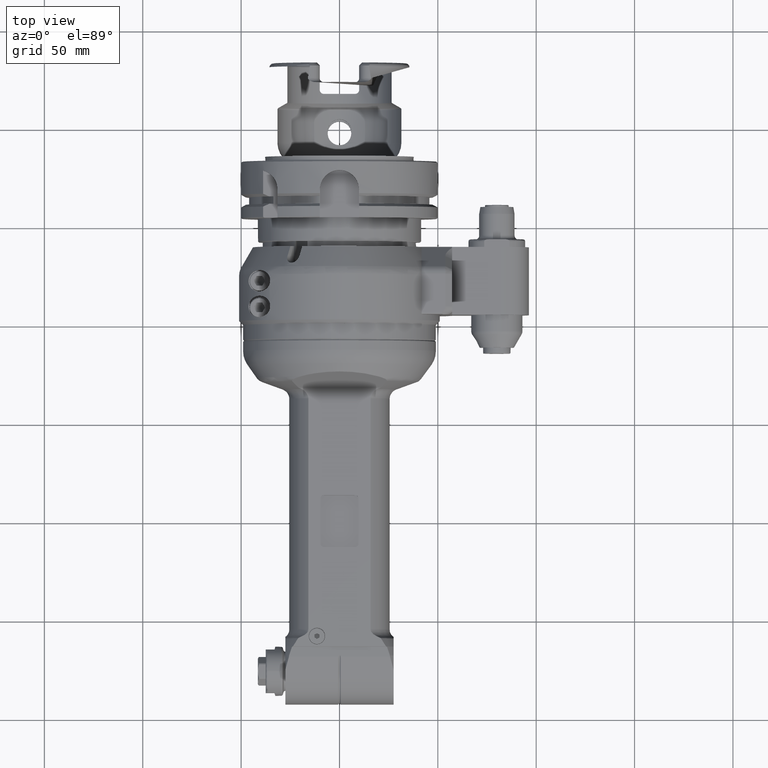
[diagram: clean part render]
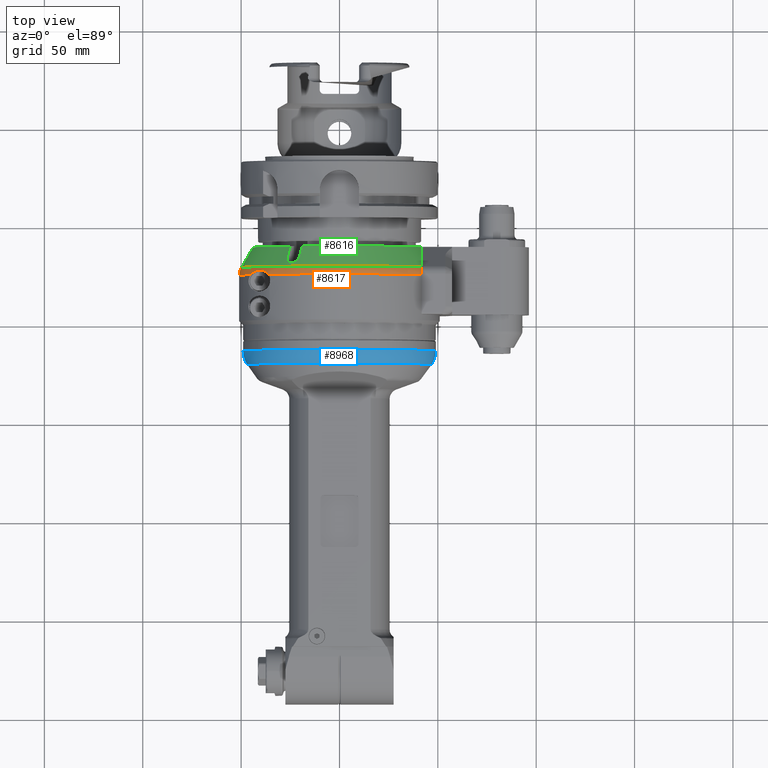
[diagram: same view with three faces highlighted in distinct colors, each labeled with its STEP entity id]
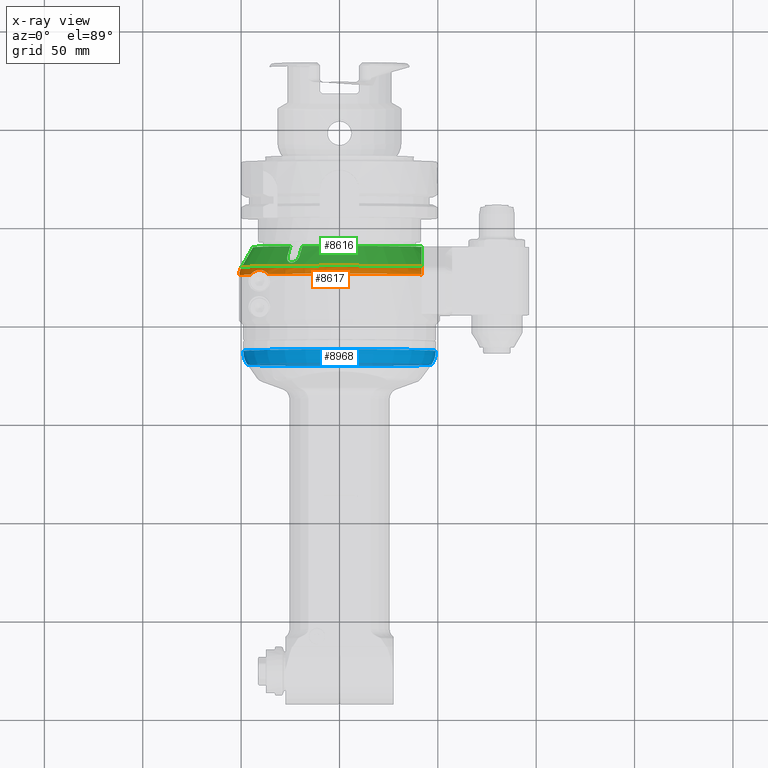
[diagram: x-ray of the same camera — body ghosted, the three highlighted faces saturated]
A machine part, top view with three faces highlighted in distinct colors.
The next image is the same camera in x-ray (body ghosted, the three faces saturated) — at least one of them is partly hidden behind the body in this view.
Their STEP definitions:

[orange] entity #8617 — the highlighted toroidal blend (fillet) surface has major radius 43 mm and minor (blend) radius 8 mm.
#84=TOROIDAL_SURFACE('',#9306,43.,8.);
#702=FACE_OUTER_BOUND('',#1241,.T.);
#1241=EDGE_LOOP('',(#5958,#5959,#5960,#5961,#5962,#5963));
#1823=CIRCLE('',#9260,51.);
#1824=CIRCLE('',#9261,51.);
#1845=CIRCLE('',#9303,49.92820323028);
#2256=B_SPLINE_CURVE_WITH_KNOTS('',3,(#12913,#12914,#12915,#12916,#12917,
#12918,#12919,#12920,#12921,#12922),.UNSPECIFIED.,.F.,.F.,(4,2,2,2,4),(-9.68559804021147,
-9.63577634006454,-9.4843525606202,-9.37005770955715,-9.2557628584941),
 .UNSPECIFIED.);
#2271=B_SPLINE_CURVE_WITH_KNOTS('',3,(#13232,#13233,#13234,#13235,#13236,
#13237,#13238,#13239),.UNSPECIFIED.,.F.,.F.,(4,2,2,4),(4.34441023881693,
4.44441523838835,4.59248867498487,4.74056211158139),.UNSPECIFIED.);
#2274=B_SPLINE_CURVE_WITH_KNOTS('',3,(#13271,#13272,#13273,#13274,#13275,
#13276,#13277,#13278,#13279,#13280,#13281,#13282,#13283,#13284,#13285,#13286),
 .UNSPECIFIED.,.F.,.F.,(4,3,3,3,3,4),(-9.34472443709596,-9.15576581563747,
-8.53592281537668,-8.19749167718073,-7.91960616501336,-7.85473194545352),
 .UNSPECIFIED.);
#3604=VERTEX_POINT('',#12878);
#3614=VERTEX_POINT('',#12909);
#3619=VERTEX_POINT('',#12933);
#3621=VERTEX_POINT('',#12942);
#3622=VERTEX_POINT('',#12969);
#3662=VERTEX_POINT('',#13220);
#4485=EDGE_CURVE('',#3614,#3604,#2256,.T.);
#4491=EDGE_CURVE('',#3619,#3604,#1823,.T.);
#4494=EDGE_CURVE('',#3622,#3621,#1824,.T.);
#4557=EDGE_CURVE('',#3662,#3622,#2271,.T.);
#4560=EDGE_CURVE('',#3614,#3662,#1845,.T.);
#4565=EDGE_CURVE('',#3621,#3619,#2274,.T.);
#5958=ORIENTED_EDGE('',*,*,#4560,.T.);
#5959=ORIENTED_EDGE('',*,*,#4557,.T.);
#5960=ORIENTED_EDGE('',*,*,#4494,.T.);
#5961=ORIENTED_EDGE('',*,*,#4565,.T.);
#5962=ORIENTED_EDGE('',*,*,#4491,.T.);
#5963=ORIENTED_EDGE('',*,*,#4485,.F.);
#8617=ADVANCED_FACE('',(#702),#84,.T.);
#9260=AXIS2_PLACEMENT_3D('',#12934,#10288,#10289);
#9261=AXIS2_PLACEMENT_3D('',#12970,#10290,#10291);
#9303=AXIS2_PLACEMENT_3D('',#13245,#10404,#10405);
#9306=AXIS2_PLACEMENT_3D('',#13270,#10410,#10411);
#10288=DIRECTION('center_axis',(-1.,0.,0.));
#10289=DIRECTION('ref_axis',(0.,-0.711205879844998,0.702983781088798));
#10290=DIRECTION('center_axis',(-1.,0.,0.));
#10291=DIRECTION('ref_axis',(0.,-0.999567380468613,0.0294117647058804));
#10404=DIRECTION('center_axis',(1.,0.,0.));
#10405=DIRECTION('ref_axis',(0.,0.836200730225418,0.548423503116412));
#10410=DIRECTION('center_axis',(1.,0.,0.));
#10411=DIRECTION('ref_axis',(0.,-1.,0.));
#12878=CARTESIAN_POINT('',(-37.23205080757,41.75,29.29057015492));
#12909=CARTESIAN_POINT('',(-41.23205080757,41.75,27.38180011986));
#12913=CARTESIAN_POINT('Ctrl Pts',(-41.2320508075675,41.75,27.3818001198576));
#12914=CARTESIAN_POINT('Ctrl Pts',(-41.1084978721799,41.75,27.5118698927609));
#12915=CARTESIAN_POINT('Ctrl Pts',(-40.9796012581369,41.75,27.63883358715));
#12916=CARTESIAN_POINT('Ctrl Pts',(-40.4412749376929,41.75,28.1311886381695));
#12917=CARTESIAN_POINT('Ctrl Pts',(-39.9932266664163,41.75,28.4521983127449));
#12918=CARTESIAN_POINT('Ctrl Pts',(-39.2119237728328,41.75,28.8694287521605));
#12919=CARTESIAN_POINT('Ctrl Pts',(-38.8258618631201,41.75,29.0288082766981));
#12920=CARTESIAN_POINT('Ctrl Pts',(-38.0264941442551,41.75,29.2396724058848));
#12921=CARTESIAN_POINT('Ctrl Pts',(-37.6130336444468,41.75,29.290570154915));
#12922=CARTESIAN_POINT('Ctrl Pts',(-37.23205080757,41.75,29.290570154915));
#12933=CARTESIAN_POINT('',(-37.23205080757,-36.27149987209,35.85217283553));
#12934=CARTESIAN_POINT('Origin',(-37.23205080757,0.,0.));
#12942=CARTESIAN_POINT('',(-37.23205080757,-45.1718026933,23.67505525733));
#12969=CARTESIAN_POINT('',(-37.2320508231036,-50.9779364044793,1.499999980309));
#12970=CARTESIAN_POINT('Origin',(-37.23205080757,0.,0.));
#13220=CARTESIAN_POINT('',(-41.2320587089715,-49.9056612221311,1.50000006858959));
#13232=CARTESIAN_POINT('Ctrl Pts',(-41.2320587100669,-49.9056612240274,
1.5));
#13233=CARTESIAN_POINT('Ctrl Pts',(-40.9199628642827,-50.0859316928166,
1.5));
#13234=CARTESIAN_POINT('Ctrl Pts',(-40.6009646113261,-50.2413262775005,
1.5));
#13235=CARTESIAN_POINT('Ctrl Pts',(-39.8370100654999,-50.5578441661684,
1.5));
#13236=CARTESIAN_POINT('Ctrl Pts',(-39.3203684112507,-50.7191785472564,
1.5));
#13237=CARTESIAN_POINT('Ctrl Pts',(-38.2646778846743,-50.9292248693063,
1.5));
#13238=CARTESIAN_POINT('Ctrl Pts',(-37.7256289314938,-50.9779364038993,
1.5));
#13239=CARTESIAN_POINT('Ctrl Pts',(-37.23205080757,-50.9779364038993,1.5));
#13245=CARTESIAN_POINT('Origin',(-41.23205080757,0.,0.));
#13270=CARTESIAN_POINT('Origin',(-37.23205080757,0.,0.));
#13271=CARTESIAN_POINT('Ctrl Pts',(-37.2320508075727,-45.1718026933004,
23.6750552573282));
#13272=CARTESIAN_POINT('Ctrl Pts',(-37.6059523067415,-44.9002459459361,
24.1931832058645));
#13273=CARTESIAN_POINT('Ctrl Pts',(-37.9420066961396,-44.583821938807,24.718802925503));
#13274=CARTESIAN_POINT('Ctrl Pts',(-38.2317635357579,-44.2347948006096,
25.2564932996317));
#13275=CARTESIAN_POINT('Ctrl Pts',(-39.1822560162215,-43.0898773216244,
27.0202848225526));
#13276=CARTESIAN_POINT('Ctrl Pts',(-39.5913735244697,-41.6682943531802,
28.8794189915673));
#13277=CARTESIAN_POINT('Ctrl Pts',(-39.4830876369283,-40.2906640836273,
30.7375607372434));
#13278=CARTESIAN_POINT('Ctrl Pts',(-39.4239640908758,-39.5384849351303,
31.7520967175706));
#13279=CARTESIAN_POINT('Ctrl Pts',(-39.2001167152273,-38.7666121290655,
32.7926546956175));
#13280=CARTESIAN_POINT('Ctrl Pts',(-38.8239051275744,-38.0796938038292,
33.6844936512119));
#13281=CARTESIAN_POINT('Ctrl Pts',(-38.5149981213353,-37.5156657665659,
34.4167818391937));
#13282=CARTESIAN_POINT('Ctrl Pts',(-38.1276341386855,-37.0238735561015,
35.0318289883221));
#13283=CARTESIAN_POINT('Ctrl Pts',(-37.6160859153108,-36.5775081079181,
35.5266834858267));
#13284=CARTESIAN_POINT('Ctrl Pts',(-37.4966615829668,-36.4733011276279,
35.6422105569248));
#13285=CARTESIAN_POINT('Ctrl Pts',(-37.368565930287,-36.3706479171666,35.751865154858));
#13286=CARTESIAN_POINT('Ctrl Pts',(-37.2320508075659,-36.2714998720946,
35.8521728355289));

[blue] entity #8968 — the highlighted toroidal blend (fillet) surface has major radius 37 mm and minor (blend) radius 12 mm.
#111=TOROIDAL_SURFACE('',#9938,37.,12.);
#1053=FACE_OUTER_BOUND('',#1633,.T.);
#1633=EDGE_LOOP('',(#7763,#7764,#7765,#7766));
#2118=CIRCLE('',#9937,46.82982453147);
#2119=CIRCLE('',#9939,49.);
#2120=CIRCLE('',#9940,12.);
#4262=VERTEX_POINT('',#57276);
#4263=VERTEX_POINT('',#57280);
#5467=EDGE_CURVE('',#4262,#4262,#2118,.T.);
#5469=EDGE_CURVE('',#4263,#4263,#2119,.T.);
#5470=EDGE_CURVE('',#4263,#4262,#2120,.T.);
#7763=ORIENTED_EDGE('',*,*,#5469,.T.);
#7764=ORIENTED_EDGE('',*,*,#5470,.T.);
#7765=ORIENTED_EDGE('',*,*,#5467,.T.);
#7766=ORIENTED_EDGE('',*,*,#5470,.F.);
#8968=ADVANCED_FACE('',(#1053),#111,.T.);
#9937=AXIS2_PLACEMENT_3D('',#57277,#12084,#12085);
#9938=AXIS2_PLACEMENT_3D('',#57279,#12087,#12088);
#9939=AXIS2_PLACEMENT_3D('',#57281,#12089,#12090);
#9940=AXIS2_PLACEMENT_3D('',#57282,#12091,#12092);
#12084=DIRECTION('center_axis',(-1.,0.,0.));
#12085=DIRECTION('ref_axis',(0.,1.,0.));
#12087=DIRECTION('center_axis',(-1.,0.,0.));
#12088=DIRECTION('ref_axis',(0.,1.,0.));
#12089=DIRECTION('center_axis',(1.,0.,0.));
#12090=DIRECTION('ref_axis',(0.,-1.,0.));
#12091=DIRECTION('center_axis',(0.,1.22464679914735E-16,1.));
#12092=DIRECTION('ref_axis',(0.,-1.,1.22464679914735E-16));
#57276=CARTESIAN_POINT('',(51.09933176966,-46.82982453147,0.));
#57277=CARTESIAN_POINT('Origin',(51.09933176966,0.,0.));
#57279=CARTESIAN_POINT('Origin',(44.21641453345,0.,0.));
#57280=CARTESIAN_POINT('',(44.21641453345,-49.,6.00076931582203E-15));
#57281=CARTESIAN_POINT('Origin',(44.21641453345,0.,0.));
#57282=CARTESIAN_POINT('Origin',(44.21641453345,-37.,4.53119315684521E-15));

[green] entity #8616 — the highlighted conical surface has half-angle 30 deg.
#195=(
BOUNDED_CURVE()
B_SPLINE_CURVE(2,(#12910,#12911,#12912),.UNSPECIFIED.,.F.,.F.)
B_SPLINE_CURVE_WITH_KNOTS((3,3),(-4.92391023083954,-2.81130786844121),
 .UNSPECIFIED.)
CURVE()
GEOMETRIC_REPRESENTATION_ITEM()
RATIONAL_B_SPLINE_CURVE((1.0074989594549,1.03062027413363,1.03252076511009))
REPRESENTATION_ITEM('')
);
#579=CONICAL_SURFACE('',#9302,46.96410161514,0.523598775598299);
#701=FACE_OUTER_BOUND('',#1240,.T.);
#1240=EDGE_LOOP('',(#5950,#5951,#5952,#5953,#5954,#5955,#5956,#5957));
#1845=CIRCLE('',#9303,49.92820323028);
#1846=CIRCLE('',#9304,44.);
#1847=CIRCLE('',#9305,44.);
#2268=B_SPLINE_CURVE_WITH_KNOTS('',3,(#13177,#13178,#13179,#13180,#13181,
#13182,#13183,#13184,#13185,#13186,#13187,#13188,#13189,#13190,#13191,#13192,
#13193,#13194),.UNSPECIFIED.,.F.,.F.,(4,2,2,2,2,2,2,2,4),(1.11206982951603,
1.24885677734264,1.4029266724495,1.5444028479349,1.68587902342029,1.82735519890569,
1.96883137439109,2.12290126949794,2.25968821731982),.UNSPECIFIED.);
#2270=B_SPLINE_CURVE_WITH_KNOTS('',3,(#13221,#13222,#13223,#13224,#13225,
#13226,#13227,#13228,#13229,#13230),.UNSPECIFIED.,.F.,.F.,(4,3,3,4),(0.,
0.3333333333333,0.6666666666667,1.),.UNSPECIFIED.);
#2272=B_SPLINE_CURVE_WITH_KNOTS('',3,(#13248,#13249,#13250,#13251,#13252,
#13253,#13254,#13255,#13256,#13257),.UNSPECIFIED.,.F.,.F.,(4,3,3,4),(0.,
0.3333333333333,0.6666666666667,1.),.UNSPECIFIED.);
#2273=B_SPLINE_CURVE_WITH_KNOTS('',3,(#13259,#13260,#13261,#13262,#13263,
#13264,#13265,#13266,#13267,#13268),.UNSPECIFIED.,.F.,.F.,(4,3,3,4),(0.,
0.3333333333333,0.6666666666667,1.),.UNSPECIFIED.);
#3613=VERTEX_POINT('',#12907);
#3614=VERTEX_POINT('',#12909);
#3655=VERTEX_POINT('',#13175);
#3656=VERTEX_POINT('',#13176);
#3661=VERTEX_POINT('',#13219);
#3662=VERTEX_POINT('',#13220);
#3665=VERTEX_POINT('',#13246);
#3666=VERTEX_POINT('',#13258);
#4484=EDGE_CURVE('',#3613,#3614,#195,.T.);
#4546=EDGE_CURVE('',#3655,#3656,#2268,.F.);
#4555=EDGE_CURVE('',#3661,#3662,#2270,.T.);
#4560=EDGE_CURVE('',#3614,#3662,#1845,.T.);
#4561=EDGE_CURVE('',#3665,#3613,#1846,.T.);
#4562=EDGE_CURVE('',#3665,#3656,#2272,.T.);
#4563=EDGE_CURVE('',#3655,#3666,#2273,.T.);
#4564=EDGE_CURVE('',#3661,#3666,#1847,.T.);
#5950=ORIENTED_EDGE('',*,*,#4560,.F.);
#5951=ORIENTED_EDGE('',*,*,#4484,.F.);
#5952=ORIENTED_EDGE('',*,*,#4561,.F.);
#5953=ORIENTED_EDGE('',*,*,#4562,.T.);
#5954=ORIENTED_EDGE('',*,*,#4546,.F.);
#5955=ORIENTED_EDGE('',*,*,#4563,.T.);
#5956=ORIENTED_EDGE('',*,*,#4564,.F.);
#5957=ORIENTED_EDGE('',*,*,#4555,.T.);
#8616=ADVANCED_FACE('',(#701),#579,.T.);
#9302=AXIS2_PLACEMENT_3D('',#13244,#10402,#10403);
#9303=AXIS2_PLACEMENT_3D('',#13245,#10404,#10405);
#9304=AXIS2_PLACEMENT_3D('',#13247,#10406,#10407);
#9305=AXIS2_PLACEMENT_3D('',#13269,#10408,#10409);
#10402=DIRECTION('center_axis',(1.,0.,0.));
#10403=DIRECTION('ref_axis',(0.,-1.,0.));
#10404=DIRECTION('center_axis',(1.,0.,0.));
#10405=DIRECTION('ref_axis',(0.,0.836200730225418,0.548423503116412));
#10406=DIRECTION('center_axis',(-1.,0.,0.));
#10407=DIRECTION('ref_axis',(0.,-0.429527235513105,0.90305390423411));
#10408=DIRECTION('center_axis',(-1.,0.,0.));
#10409=DIRECTION('ref_axis',(0.,-0.999418736024773,0.0340909090909091));
#12907=CARTESIAN_POINT('',(-51.5,41.75,13.89019438309));
#12909=CARTESIAN_POINT('',(-41.23205080757,41.75,27.38180011986));
#12910=CARTESIAN_POINT('Ctrl Pts',(-51.4999999999926,41.75,13.8901943831015));
#12911=CARTESIAN_POINT('Ctrl Pts',(-48.0442956678849,41.75,20.2102413125831));
#12912=CARTESIAN_POINT('Ctrl Pts',(-41.2320508075673,41.75,27.3818001198562));
#13175=CARTESIAN_POINT('',(-46.49999999996,-26.40905638146,38.74182743265));
#13176=CARTESIAN_POINT('',(-46.5,-20.34687855495,42.24182743261));
#13177=CARTESIAN_POINT('Ctrl Pts',(-46.5000000000022,-20.3468785549539,
42.2418274326121));
#13178=CARTESIAN_POINT('Ctrl Pts',(-46.0992085079171,-20.4629008008145,
42.4427838572514));
#13179=CARTESIAN_POINT('Ctrl Pts',(-45.6780271021369,-20.6496060415951,
42.6229397461814));
#13180=CARTESIAN_POINT('Ctrl Pts',(-44.8336229766582,-21.1765134567461,
42.9080443216851));
#13181=CARTESIAN_POINT('Ctrl Pts',(-44.416786404141,-21.5338827677997,43.000036123302));
#13182=CARTESIAN_POINT('Ctrl Pts',(-43.7689100689263,-22.2748250788787,
43.0423244163336));
#13183=CARTESIAN_POINT('Ctrl Pts',(-43.4858969585476,-22.7012115036421,
43.0050112903121));
#13184=CARTESIAN_POINT('Ctrl Pts',(-43.1011571537055,-23.5864558934365,
42.779754686541));
#13185=CARTESIAN_POINT('Ctrl Pts',(-43.,-24.0453321040545,42.5909113923236));
#13186=CARTESIAN_POINT('Ctrl Pts',(-43.,-24.8621451840586,42.1193241407056));
#13187=CARTESIAN_POINT('Ctrl Pts',(-43.1011571537054,-25.2551263794943,
41.8163473322267));
#13188=CARTESIAN_POINT('Ctrl Pts',(-43.4858969585476,-25.8928265156274,
41.1623315039927));
#13189=CARTESIAN_POINT('Ctrl Pts',(-43.7689100689263,-26.1383338430383,
40.8117265913295));
#13190=CARTESIAN_POINT('Ctrl Pts',(-44.416786404141,-26.4721822625297,40.1489075806805));
#13191=CARTESIAN_POINT('Ctrl Pts',(-44.8336229766582,-26.5711996809163,
39.7934207779667));
#13192=CARTESIAN_POINT('Ctrl Pts',(-45.6780271021231,-26.5877455833702,
39.1945532832615));
#13193=CARTESIAN_POINT('Ctrl Pts',(-46.0992085078879,-26.5250786273105,
38.9427838572684));
#13194=CARTESIAN_POINT('Ctrl Pts',(-46.4999999999604,-26.409056381457,38.7418274326329));
#13219=CARTESIAN_POINT('',(-51.5,-43.97442438509,1.5));
#13220=CARTESIAN_POINT('',(-41.2320587089715,-49.9056612221311,1.50000006858959));
#13221=CARTESIAN_POINT('Ctrl Pts',(-51.5,-43.97442438509,1.5));
#13222=CARTESIAN_POINT('Ctrl Pts',(-50.3591242554,-44.63349239584,1.5));
#13223=CARTESIAN_POINT('Ctrl Pts',(-49.2182445912652,-45.2925454352499,
1.5));
#13224=CARTESIAN_POINT('Ctrl Pts',(-48.0773635402228,-45.9515842405682,
1.5));
#13225=CARTESIAN_POINT('Ctrl Pts',(-46.9364824891801,-46.6106230458866,
1.5));
#13226=CARTESIAN_POINT('Ctrl Pts',(-45.7956000512299,-47.2696476171134,
1.5));
#13227=CARTESIAN_POINT('Ctrl Pts',(-44.6547122553372,-47.9286620207944,
1.5));
#13228=CARTESIAN_POINT('Ctrl Pts',(-43.5138244594448,-48.5876764244751,
1.5));
#13229=CARTESIAN_POINT('Ctrl Pts',(-42.37293130561,-49.24668066061,1.5));
#13230=CARTESIAN_POINT('Ctrl Pts',(-41.23206660847,-49.90565666041,1.5));
#13244=CARTESIAN_POINT('Origin',(-46.36602540378,0.,0.));
#13245=CARTESIAN_POINT('Origin',(-41.23205080757,0.,0.));
#13246=CARTESIAN_POINT('',(-51.5,-18.89919836257,39.7343717863));
#13247=CARTESIAN_POINT('Origin',(-51.5,0.,0.));
#13248=CARTESIAN_POINT('Ctrl Pts',(-51.5000000000014,-18.8991983625711,
39.7343717863022));
#13249=CARTESIAN_POINT('Ctrl Pts',(-50.9444542650933,-19.0600803989624,
40.0130276473551));
#13250=CARTESIAN_POINT('Ctrl Pts',(-50.388904658883,-19.2209523393287,40.2916660666116));
#13251=CARTESIAN_POINT('Ctrl Pts',(-49.8333517949314,-19.3818147452656,
40.5702879469609));
#13252=CARTESIAN_POINT('Ctrl Pts',(-49.2777989309796,-19.5426771512026,
40.8489098273103));
#13253=CARTESIAN_POINT('Ctrl Pts',(-48.7222428089151,-19.7035300221847,
41.12751516829));
#13254=CARTESIAN_POINT('Ctrl Pts',(-48.1666839961689,-19.8643738399584,
41.4061048113134));
#13255=CARTESIAN_POINT('Ctrl Pts',(-47.6111251834229,-20.0252176577319,
41.6846944543368));
#13256=CARTESIAN_POINT('Ctrl Pts',(-47.0555636796713,-20.186052421901,41.963268398972));
#13257=CARTESIAN_POINT('Ctrl Pts',(-46.5000000000021,-20.3468785549516,
42.2418274326133));
#13258=CARTESIAN_POINT('',(-51.5,-24.96137618907,36.2343717863));
#13259=CARTESIAN_POINT('Ctrl Pts',(-46.4999999999533,-26.4090563814534,
38.7418274326404));
#13260=CARTESIAN_POINT('Ctrl Pts',(-47.0555636796356,-26.2482302483957,
38.4632683989937));
#13261=CARTESIAN_POINT('Ctrl Pts',(-47.6111251834248,-26.0873955175853,
38.1846944350734));
#13262=CARTESIAN_POINT('Ctrl Pts',(-48.1666839961872,-25.9265517183778,
37.9061047813199));
#13263=CARTESIAN_POINT('Ctrl Pts',(-48.7222428089498,-25.7657079191702,
37.6275151275664));
#13264=CARTESIAN_POINT('Ctrl Pts',(-49.2777989310094,-25.6048550517416,
37.3489097845386));
#13265=CARTESIAN_POINT('Ctrl Pts',(-49.8333517949564,-25.4439926282768,
37.0702879143124));
#13266=CARTESIAN_POINT('Ctrl Pts',(-50.3889046589031,-25.283130204812,36.7916660440862));
#13267=CARTESIAN_POINT('Ctrl Pts',(-50.9444542651086,-25.1222582254486,
36.5130276473481));
#13268=CARTESIAN_POINT('Ctrl Pts',(-51.4999999999959,-24.9613761890659,
36.2343717863041));
#13269=CARTESIAN_POINT('Origin',(-51.5,0.,0.));